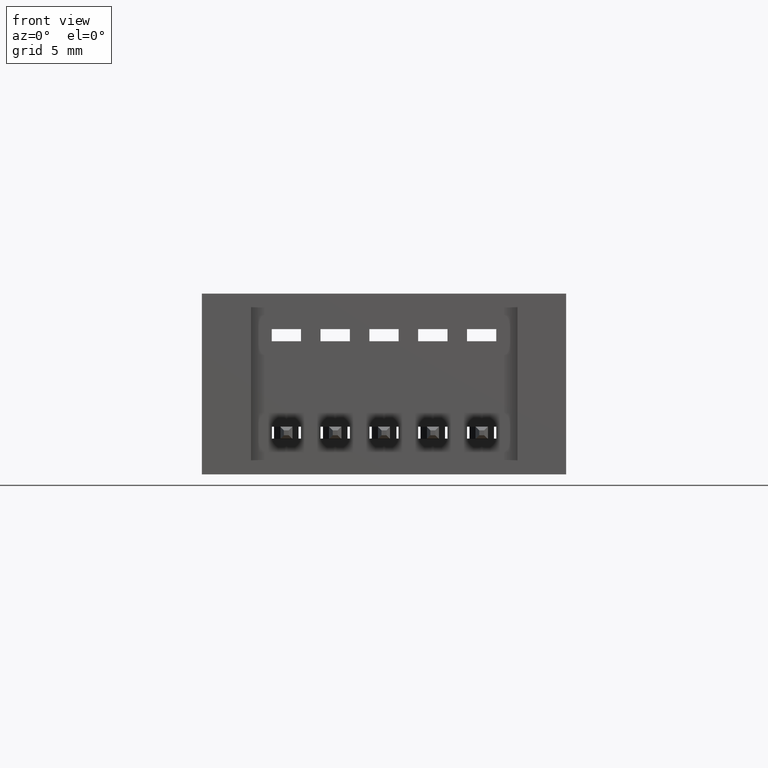
[diagram: clean part render]
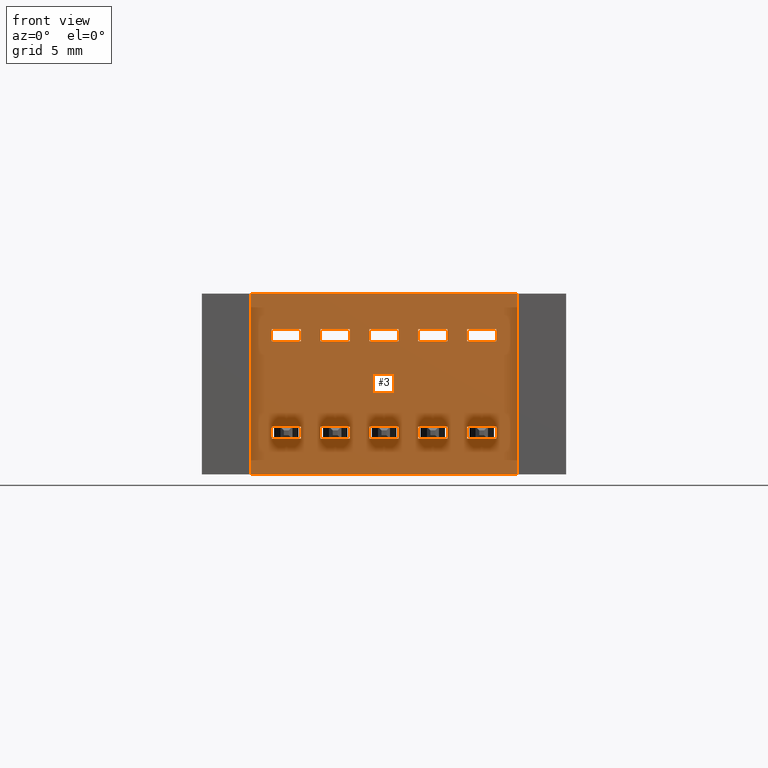
[diagram: same view with one face highlighted and labeled with its STEP entity id]
A machine part, front view. The second image highlights one B-rep face of the part: STEP entity #3.
In plain terms, the highlighted planar face has unit normal (0, 1, 0).
Its self-contained STEP definition (entity closure, byte-faithful):
#2 = CARTESIAN_POINT ( 'NONE',  ( 0.7199999999999998600, 0.04000000000000000100, -0.09750000000000001700 ) ) ;
#3 = ADVANCED_FACE ( 'NONE', ( #7168, #5642, #1019, #6998, #5470, #3957, #2370, #845, #6825, #5285, #3761 ), #747, .F. ) ;
#10 = CARTESIAN_POINT ( 'NONE',  ( 0.6799999999999999400, 0.04000000000000000800, -0.07250000000000000900 ) ) ;
#23 = VECTOR ( 'NONE', #4223, 39.37007874015748100 ) ;
#35 = ORIENTED_EDGE ( 'NONE', *, *, #649, .T. ) ;
#82 = EDGE_LOOP ( 'NONE', ( #2762, #1400, #4502, #3130 ) ) ;
#92 = LINE ( 'NONE', #761, #1808 ) ;
#195 = VERTEX_POINT ( 'NONE', #3414 ) ;
#201 = ORIENTED_EDGE ( 'NONE', *, *, #5214, .T. ) ;
#233 = LINE ( 'NONE', #1312, #6237 ) ;
#291 = EDGE_CURVE ( 'NONE', #7217, #7209, #2928, .T. ) ;
#294 = LINE ( 'NONE', #5564, #4943 ) ;
#343 = VECTOR ( 'NONE', #3204, 39.37007874015748100 ) ;
#374 = CARTESIAN_POINT ( 'NONE',  ( 0.5200000000000000200, 0.04000000000000000800, -0.07249999999999998100 ) ) ;
#384 = ORIENTED_EDGE ( 'NONE', *, *, #291, .F. ) ;
#385 = EDGE_CURVE ( 'NONE', #962, #513, #2563, .T. ) ;
#405 = DIRECTION ( 'NONE',  ( 1.000000000000000000, -0.0000000000000000000, -0.0000000000000000000 ) ) ;
#436 = CARTESIAN_POINT ( 'NONE',  ( 0.8199999999999998400, 0.04000000000000000100, -0.2725000000000000800 ) ) ;
#445 = VECTOR ( 'NONE', #3882, 39.37007874015748100 ) ;
#457 = DIRECTION ( 'NONE',  ( 0.0000000000000000000, 3.414809992080328000E-016, -1.000000000000000000 ) ) ;
#485 = LINE ( 'NONE', #4992, #6478 ) ;
#494 = CARTESIAN_POINT ( 'NONE',  ( 0.4799999999999999800, 0.04000000000000000100, -0.09749999999999998900 ) ) ;
#513 = VERTEX_POINT ( 'NONE', #6024 ) ;
#514 = DIRECTION ( 'NONE',  ( -0.0000000000000000000, -3.414809992080328000E-016, -1.000000000000000000 ) ) ;
#550 = LINE ( 'NONE', #1474, #4653 ) ;
#576 = ORIENTED_EDGE ( 'NONE', *, *, #7409, .F. ) ;
#578 = EDGE_CURVE ( 'NONE', #1137, #7431, #3026, .T. ) ;
#649 = EDGE_CURVE ( 'NONE', #1497, #1867, #6717, .T. ) ;
#663 = EDGE_LOOP ( 'NONE', ( #1577, #201, #5028, #576 ) ) ;
#690 = CARTESIAN_POINT ( 'NONE',  ( 0.6200000000000000000, 0.04000000000000000100, -0.09750000000000000300 ) ) ;
#692 = VERTEX_POINT ( 'NONE', #374 ) ;
#728 = LINE ( 'NONE', #6190, #3829 ) ;
#747 = PLANE ( 'NONE',  #4792 ) ;
#761 = CARTESIAN_POINT ( 'NONE',  ( 0.4200000000000000400, 0.04000000000000000800, -0.2975000000000000400 ) ) ;
#763 = ORIENTED_EDGE ( 'NONE', *, *, #3802, .T. ) ;
#808 = EDGE_LOOP ( 'NONE', ( #4846, #1907, #5023, #4131 ) ) ;
#811 = CARTESIAN_POINT ( 'NONE',  ( 0.6200000000000000000, 0.04000000000000000100, -0.2725000000000000800 ) ) ;
#814 = CARTESIAN_POINT ( 'NONE',  ( 0.5800000000000000700, 0.04000000000000000100, -0.09750000000000000300 ) ) ;
#845 = FACE_BOUND ( 'NONE', #6201, .T. ) ;
#853 = ORIENTED_EDGE ( 'NONE', *, *, #5620, .T. ) ;
#892 = CARTESIAN_POINT ( 'NONE',  ( 0.7799999999999999200, 0.04000000000000000100, -0.2975000000000001000 ) ) ;
#901 = CARTESIAN_POINT ( 'NONE',  ( 0.3770000000000000600, 0.04000000000000000100, -0.3700000000000000000 ) ) ;
#923 = EDGE_CURVE ( 'NONE', #692, #6765, #1642, .T. ) ;
#940 = EDGE_CURVE ( 'NONE', #7088, #2026, #92, .T. ) ;
#941 = EDGE_LOOP ( 'NONE', ( #6474, #5128, #5296, #853 ) ) ;
#944 = ORIENTED_EDGE ( 'NONE', *, *, #2325, .F. ) ;
#950 = VERTEX_POINT ( 'NONE', #1616 ) ;
#953 = ORIENTED_EDGE ( 'NONE', *, *, #4232, .F. ) ;
#962 = VERTEX_POINT ( 'NONE', #6511 ) ;
#1019 = FACE_BOUND ( 'NONE', #663, .T. ) ;
#1038 = VERTEX_POINT ( 'NONE', #4463 ) ;
#1056 = VERTEX_POINT ( 'NONE', #1969 ) ;
#1073 = VERTEX_POINT ( 'NONE', #1597 ) ;
#1097 = LINE ( 'NONE', #5647, #4026 ) ;
#1104 = VECTOR ( 'NONE', #6695, 39.37007874015748100 ) ;
#1107 = EDGE_CURVE ( 'NONE', #1369, #1073, #3653, .T. ) ;
#1117 = ORIENTED_EDGE ( 'NONE', *, *, #385, .T. ) ;
#1122 = VERTEX_POINT ( 'NONE', #1518 ) ;
#1137 = VERTEX_POINT ( 'NONE', #2841 ) ;
#1157 = VECTOR ( 'NONE', #405, 39.37007874015748100 ) ;
#1160 = DIRECTION ( 'NONE',  ( 1.000000000000000000, -0.0000000000000000000, -0.0000000000000000000 ) ) ;
#1191 = EDGE_CURVE ( 'NONE', #3138, #6627, #2910, .T. ) ;
#1206 = ORIENTED_EDGE ( 'NONE', *, *, #3826, .F. ) ;
#1220 = DIRECTION ( 'NONE',  ( 1.000000000000000000, -0.0000000000000000000, -0.0000000000000000000 ) ) ;
#1233 = VERTEX_POINT ( 'NONE', #5099 ) ;
#1237 = CARTESIAN_POINT ( 'NONE',  ( 0.7799999999999999200, 0.04000000000000000100, -0.09750000000000001700 ) ) ;
#1257 = CARTESIAN_POINT ( 'NONE',  ( 0.4799999999999999800, 0.04000000000000000800, -0.07249999999999998100 ) ) ;
#1261 = VECTOR ( 'NONE', #1994, 39.37007874015748100 ) ;
#1275 = CARTESIAN_POINT ( 'NONE',  ( 0.8799999999999998900, 0.04000000000000000800, -0.07250000000000002300 ) ) ;
#1289 = DIRECTION ( 'NONE',  ( 1.000000000000000000, -0.0000000000000000000, -0.0000000000000000000 ) ) ;
#1308 = ORIENTED_EDGE ( 'NONE', *, *, #4941, .F. ) ;
#1312 = CARTESIAN_POINT ( 'NONE',  ( 0.8199999999999998400, 0.04000000000000000100, -0.09750000000000003100 ) ) ;
#1324 = LINE ( 'NONE', #6307, #7281 ) ;
#1330 = VERTEX_POINT ( 'NONE', #6272 ) ;
#1366 = VECTOR ( 'NONE', #5114, 39.37007874015748100 ) ;
#1369 = VERTEX_POINT ( 'NONE', #3824 ) ;
#1386 = EDGE_LOOP ( 'NONE', ( #1308, #2858, #5948, #3050 ) ) ;
#1388 = CARTESIAN_POINT ( 'NONE',  ( 0.6200000000000000000, 0.04000000000000000800, -0.2975000000000001000 ) ) ;
#1391 = DIRECTION ( 'NONE',  ( 0.0000000000000000000, 3.414809992080328000E-016, -1.000000000000000000 ) ) ;
#1395 = ORIENTED_EDGE ( 'NONE', *, *, #2230, .T. ) ;
#1400 = ORIENTED_EDGE ( 'NONE', *, *, #2085, .T. ) ;
#1436 = EDGE_LOOP ( 'NONE', ( #1206, #2756, #1395, #35 ) ) ;
#1448 = CARTESIAN_POINT ( 'NONE',  ( 0.4200000000000000400, 0.04000000000000000800, -0.07249999999999998100 ) ) ;
#1474 = CARTESIAN_POINT ( 'NONE',  ( 0.6200000000000000000, 0.04000000000000000800, -0.2975000000000001000 ) ) ;
#1497 = VERTEX_POINT ( 'NONE', #5975 ) ;
#1512 = DIRECTION ( 'NONE',  ( -0.0000000000000000000, -3.414809992080328000E-016, -1.000000000000000000 ) ) ;
#1518 = CARTESIAN_POINT ( 'NONE',  ( 0.5800000000000000700, 0.04000000000000000800, -0.07249999999999998100 ) ) ;
#1542 = LINE ( 'NONE', #4851, #2717 ) ;
#1577 = ORIENTED_EDGE ( 'NONE', *, *, #923, .F. ) ;
#1585 = CARTESIAN_POINT ( 'NONE',  ( 0.7199999999999998600, 0.04000000000000000800, -0.2975000000000001000 ) ) ;
#1592 = CARTESIAN_POINT ( 'NONE',  ( 0.5200000000000000200, 0.04000000000000000100, -0.2725000000000000200 ) ) ;
#1597 = CARTESIAN_POINT ( 'NONE',  ( 0.8199999999999998400, 0.04000000000000000800, -0.2975000000000001000 ) ) ;
#1616 = CARTESIAN_POINT ( 'NONE',  ( 0.9229999999999999300, 0.04000000000000000100, -0.3700000000000001100 ) ) ;
#1628 = DIRECTION ( 'NONE',  ( 1.000000000000000000, -0.0000000000000000000, -0.0000000000000000000 ) ) ;
#1642 = LINE ( 'NONE', #2358, #4917 ) ;
#1702 = VECTOR ( 'NONE', #2536, 39.37007874015748100 ) ;
#1724 = EDGE_CURVE ( 'NONE', #5955, #950, #1097, .T. ) ;
#1727 = CARTESIAN_POINT ( 'NONE',  ( 0.5800000000000000700, 0.04000000000000000100, -0.2725000000000000200 ) ) ;
#1788 = VECTOR ( 'NONE', #7290, 39.37007874015748100 ) ;
#1801 = LINE ( 'NONE', #2435, #445 ) ;
#1808 = VECTOR ( 'NONE', #5154, 39.37007874015748100 ) ;
#1820 = DIRECTION ( 'NONE',  ( 1.000000000000000000, -0.0000000000000000000, -0.0000000000000000000 ) ) ;
#1842 = EDGE_CURVE ( 'NONE', #7209, #5405, #550, .T. ) ;
#1851 = CARTESIAN_POINT ( 'NONE',  ( 0.3770000000000000600, 0.04000000000000000100, 0.0000000000000000000 ) ) ;
#1853 = LINE ( 'NONE', #6828, #6138 ) ;
#1867 = VERTEX_POINT ( 'NONE', #892 ) ;
#1871 = VERTEX_POINT ( 'NONE', #1257 ) ;
#1881 = CARTESIAN_POINT ( 'NONE',  ( 0.7799999999999999200, 0.04000000000000000100, -0.09750000000000001700 ) ) ;
#1886 = CARTESIAN_POINT ( 'NONE',  ( 0.6799999999999999400, 0.04000000000000000100, -0.2725000000000000800 ) ) ;
#1899 = DIRECTION ( 'NONE',  ( 1.000000000000000000, -0.0000000000000000000, -0.0000000000000000000 ) ) ;
#1907 = ORIENTED_EDGE ( 'NONE', *, *, #7359, .T. ) ;
#1969 = CARTESIAN_POINT ( 'NONE',  ( 0.5800000000000000700, 0.04000000000000000100, -0.2975000000000000400 ) ) ;
#1994 = DIRECTION ( 'NONE',  ( 1.000000000000000000, -0.0000000000000000000, -0.0000000000000000000 ) ) ;
#2026 = VERTEX_POINT ( 'NONE', #3092 ) ;
#2056 = VERTEX_POINT ( 'NONE', #4050 ) ;
#2084 = VECTOR ( 'NONE', #6787, 39.37007874015748100 ) ;
#2085 = EDGE_CURVE ( 'NONE', #4618, #1871, #3379, .T. ) ;
#2104 = ORIENTED_EDGE ( 'NONE', *, *, #7343, .F. ) ;
#2124 = VERTEX_POINT ( 'NONE', #1881 ) ;
#2176 = CARTESIAN_POINT ( 'NONE',  ( 0.4200000000000000400, 0.04000000000000000800, -0.07249999999999998100 ) ) ;
#2188 = EDGE_CURVE ( 'NONE', #950, #7064, #2443, .T. ) ;
#2228 = DIRECTION ( 'NONE',  ( -0.0000000000000000000, -3.414809992080328000E-016, -1.000000000000000000 ) ) ;
#2230 = EDGE_CURVE ( 'NONE', #1137, #1497, #728, .T. ) ;
#2325 = EDGE_CURVE ( 'NONE', #962, #1330, #6346, .T. ) ;
#2358 = CARTESIAN_POINT ( 'NONE',  ( 0.5200000000000000200, 0.04000000000000000100, -0.09750000000000000300 ) ) ;
#2362 = VECTOR ( 'NONE', #6148, 39.37007874015748100 ) ;
#2370 = FACE_BOUND ( 'NONE', #82, .T. ) ;
#2380 = CARTESIAN_POINT ( 'NONE',  ( 0.9229999999999998200, 0.04000000000000000100, -1.895600338963814500E-033 ) ) ;
#2387 = VERTEX_POINT ( 'NONE', #690 ) ;
#2406 = EDGE_CURVE ( 'NONE', #6850, #1233, #1542, .T. ) ;
#2407 = DIRECTION ( 'NONE',  ( 1.000000000000000000, 0.0000000000000000000, -1.250846150945175800E-016 ) ) ;
#2410 = DIRECTION ( 'NONE',  ( 1.000000000000000000, -0.0000000000000000000, -0.0000000000000000000 ) ) ;
#2435 = CARTESIAN_POINT ( 'NONE',  ( 0.8799999999999998900, 0.04000000000000000100, -0.09750000000000003100 ) ) ;
#2443 = LINE ( 'NONE', #5788, #5541 ) ;
#2474 = CARTESIAN_POINT ( 'NONE',  ( 0.5200000000000000200, 0.04000000000000000800, -0.2975000000000000400 ) ) ;
#2495 = DIRECTION ( 'NONE',  ( 0.0000000000000000000, 3.414809992080328000E-016, -1.000000000000000000 ) ) ;
#2513 = CARTESIAN_POINT ( 'NONE',  ( 0.7199999999999998600, 0.04000000000000000800, -0.2975000000000001000 ) ) ;
#2525 = CARTESIAN_POINT ( 'NONE',  ( 0.6200000000000000000, 0.04000000000000000800, -0.07250000000000000900 ) ) ;
#2536 = DIRECTION ( 'NONE',  ( 1.000000000000000000, -0.0000000000000000000, -0.0000000000000000000 ) ) ;
#2542 = CARTESIAN_POINT ( 'NONE',  ( 0.8799999999999998900, 0.04000000000000000100, -0.09750000000000003100 ) ) ;
#2563 = LINE ( 'NONE', #6933, #2362 ) ;
#2596 = CARTESIAN_POINT ( 'NONE',  ( 0.8199999999999998400, 0.04000000000000000100, -0.09750000000000003100 ) ) ;
#2610 = EDGE_CURVE ( 'NONE', #3537, #5160, #2808, .T. ) ;
#2676 = ORIENTED_EDGE ( 'NONE', *, *, #4375, .T. ) ;
#2679 = DIRECTION ( 'NONE',  ( 1.000000000000000000, -0.0000000000000000000, -0.0000000000000000000 ) ) ;
#2717 = VECTOR ( 'NONE', #1391, 39.37007874015748100 ) ;
#2721 = CARTESIAN_POINT ( 'NONE',  ( 0.5200000000000000200, 0.04000000000000000100, -0.09750000000000000300 ) ) ;
#2736 = EDGE_CURVE ( 'NONE', #1122, #1038, #4995, .T. ) ;
#2756 = ORIENTED_EDGE ( 'NONE', *, *, #578, .F. ) ;
#2762 = ORIENTED_EDGE ( 'NONE', *, *, #5691, .F. ) ;
#2798 = CARTESIAN_POINT ( 'NONE',  ( 0.4200000000000000400, 0.04000000000000000100, -0.09749999999999998900 ) ) ;
#2808 = LINE ( 'NONE', #5032, #1261 ) ;
#2809 = DIRECTION ( 'NONE',  ( -0.0000000000000000000, -3.414809992080328000E-016, -1.000000000000000000 ) ) ;
#2811 = DIRECTION ( 'NONE',  ( 0.0000000000000000000, 3.414809992080328000E-016, -1.000000000000000000 ) ) ;
#2841 = CARTESIAN_POINT ( 'NONE',  ( 0.7199999999999998600, 0.04000000000000000100, -0.2725000000000000800 ) ) ;
#2858 = ORIENTED_EDGE ( 'NONE', *, *, #2610, .T. ) ;
#2859 = VECTOR ( 'NONE', #1628, 39.37007874015748100 ) ;
#2910 = LINE ( 'NONE', #5460, #1366 ) ;
#2928 = LINE ( 'NONE', #4474, #23 ) ;
#2973 = DIRECTION ( 'NONE',  ( -0.0000000000000000000, 1.000000000000000000, 0.0000000000000000000 ) ) ;
#3026 = LINE ( 'NONE', #6676, #1104 ) ;
#3050 = ORIENTED_EDGE ( 'NONE', *, *, #1191, .F. ) ;
#3052 = LINE ( 'NONE', #6300, #2859 ) ;
#3076 = DIRECTION ( 'NONE',  ( 1.000000000000000000, -0.0000000000000000000, -0.0000000000000000000 ) ) ;
#3082 = DIRECTION ( 'NONE',  ( 1.000000000000000000, -0.0000000000000000000, -0.0000000000000000000 ) ) ;
#3092 = CARTESIAN_POINT ( 'NONE',  ( 0.4799999999999999800, 0.04000000000000000100, -0.2975000000000000400 ) ) ;
#3130 = ORIENTED_EDGE ( 'NONE', *, *, #3131, .F. ) ;
#3131 = EDGE_CURVE ( 'NONE', #5968, #3350, #6610, .T. ) ;
#3138 = VERTEX_POINT ( 'NONE', #2596 ) ;
#3143 = CARTESIAN_POINT ( 'NONE',  ( 0.5200000000000000200, 0.04000000000000000800, -0.07249999999999998100 ) ) ;
#3148 = EDGE_CURVE ( 'NONE', #5160, #6627, #1801, .T. ) ;
#3192 = VECTOR ( 'NONE', #6181, 39.37007874015748100 ) ;
#3204 = DIRECTION ( 'NONE',  ( -0.0000000000000000000, -3.414809992080328000E-016, -1.000000000000000000 ) ) ;
#3228 = ORIENTED_EDGE ( 'NONE', *, *, #6092, .T. ) ;
#3240 = LINE ( 'NONE', #1727, #5756 ) ;
#3242 = LINE ( 'NONE', #901, #6483 ) ;
#3273 = VECTOR ( 'NONE', #7330, 39.37007874015748100 ) ;
#3332 = DIRECTION ( 'NONE',  ( 1.000000000000000000, -0.0000000000000000000, -0.0000000000000000000 ) ) ;
#3340 = VERTEX_POINT ( 'NONE', #2 ) ;
#3350 = VERTEX_POINT ( 'NONE', #3888 ) ;
#3365 = LINE ( 'NONE', #7345, #1788 ) ;
#3377 = VECTOR ( 'NONE', #3082, 39.37007874015748100 ) ;
#3379 = LINE ( 'NONE', #2176, #3192 ) ;
#3382 = EDGE_LOOP ( 'NONE', ( #953, #7095, #2676, #5753 ) ) ;
#3391 = EDGE_CURVE ( 'NONE', #1871, #3350, #6526, .T. ) ;
#3414 = CARTESIAN_POINT ( 'NONE',  ( 0.4200000000000000400, 0.04000000000000000100, -0.2725000000000000200 ) ) ;
#3513 = ORIENTED_EDGE ( 'NONE', *, *, #5896, .T. ) ;
#3537 = VERTEX_POINT ( 'NONE', #5103 ) ;
#3636 = CARTESIAN_POINT ( 'NONE',  ( 0.6200000000000000000, 0.04000000000000000100, -0.2725000000000000800 ) ) ;
#3639 = VECTOR ( 'NONE', #1899, 39.37007874015748100 ) ;
#3642 = LINE ( 'NONE', #3839, #4993 ) ;
#3644 = VECTOR ( 'NONE', #7176, 39.37007874015748100 ) ;
#3653 = LINE ( 'NONE', #5828, #5005 ) ;
#3677 = VERTEX_POINT ( 'NONE', #4248 ) ;
#3685 = ORIENTED_EDGE ( 'NONE', *, *, #5976, .T. ) ;
#3761 = FACE_BOUND ( 'NONE', #1386, .T. ) ;
#3802 = EDGE_CURVE ( 'NONE', #6387, #3677, #3642, .T. ) ;
#3819 = EDGE_CURVE ( 'NONE', #1330, #1056, #4810, .T. ) ;
#3824 = CARTESIAN_POINT ( 'NONE',  ( 0.8199999999999998400, 0.04000000000000000100, -0.2725000000000000800 ) ) ;
#3826 = EDGE_CURVE ( 'NONE', #7431, #1867, #6517, .T. ) ;
#3829 = VECTOR ( 'NONE', #1820, 39.37007874015748100 ) ;
#3837 = CARTESIAN_POINT ( 'NONE',  ( 0.6799999999999999400, 0.04000000000000000100, -0.2975000000000001000 ) ) ;
#3839 = CARTESIAN_POINT ( 'NONE',  ( 0.6799999999999999400, 0.04000000000000000100, -0.09750000000000000300 ) ) ;
#3866 = ORIENTED_EDGE ( 'NONE', *, *, #3819, .F. ) ;
#3882 = DIRECTION ( 'NONE',  ( -0.0000000000000000000, -3.414809992080328000E-016, -1.000000000000000000 ) ) ;
#3888 = CARTESIAN_POINT ( 'NONE',  ( 0.4799999999999999800, 0.04000000000000000100, -0.09749999999999998900 ) ) ;
#3955 = CARTESIAN_POINT ( 'NONE',  ( 0.8799999999999998900, 0.04000000000000000100, -0.2725000000000000800 ) ) ;
#3957 = FACE_BOUND ( 'NONE', #941, .T. ) ;
#3977 = VECTOR ( 'NONE', #5406, 39.37007874015748100 ) ;
#3978 = CARTESIAN_POINT ( 'NONE',  ( 0.3770000000000000600, 0.04000000000000000100, 0.0000000000000000000 ) ) ;
#4008 = VERTEX_POINT ( 'NONE', #6101 ) ;
#4026 = VECTOR ( 'NONE', #2407, 39.37007874015748100 ) ;
#4050 = CARTESIAN_POINT ( 'NONE',  ( 0.7799999999999999200, 0.04000000000000000800, -0.07250000000000000900 ) ) ;
#4071 = EDGE_CURVE ( 'NONE', #195, #7088, #3365, .T. ) ;
#4131 = ORIENTED_EDGE ( 'NONE', *, *, #6309, .F. ) ;
#4147 = LINE ( 'NONE', #2525, #3977 ) ;
#4223 = DIRECTION ( 'NONE',  ( 0.0000000000000000000, 3.414809992080328000E-016, -1.000000000000000000 ) ) ;
#4232 = EDGE_CURVE ( 'NONE', #1073, #1233, #4981, .T. ) ;
#4248 = CARTESIAN_POINT ( 'NONE',  ( 0.6799999999999999400, 0.04000000000000000100, -0.09750000000000000300 ) ) ;
#4255 = VECTOR ( 'NONE', #2228, 39.37007874015748100 ) ;
#4261 = CARTESIAN_POINT ( 'NONE',  ( 0.4200000000000000400, 0.04000000000000000100, -0.09749999999999998900 ) ) ;
#4275 = EDGE_CURVE ( 'NONE', #7064, #7115, #6333, .T. ) ;
#4325 = LINE ( 'NONE', #5348, #4503 ) ;
#4337 = DIRECTION ( 'NONE',  ( -0.0000000000000000000, -3.414809992080328000E-016, -1.000000000000000000 ) ) ;
#4375 = EDGE_CURVE ( 'NONE', #1369, #6850, #5601, .T. ) ;
#4403 = VECTOR ( 'NONE', #3332, 39.37007874015748100 ) ;
#4463 = CARTESIAN_POINT ( 'NONE',  ( 0.5800000000000000700, 0.04000000000000000100, -0.09750000000000000300 ) ) ;
#4474 = CARTESIAN_POINT ( 'NONE',  ( 0.6200000000000000000, 0.04000000000000000100, -0.2725000000000000800 ) ) ;
#4502 = ORIENTED_EDGE ( 'NONE', *, *, #3391, .T. ) ;
#4503 = VECTOR ( 'NONE', #1289, 39.37007874015748100 ) ;
#4512 = LINE ( 'NONE', #3636, #5856 ) ;
#4578 = DIRECTION ( 'NONE',  ( -0.0000000000000000000, -3.414809992080328000E-016, -1.000000000000000000 ) ) ;
#4591 = ORIENTED_EDGE ( 'NONE', *, *, #4275, .T. ) ;
#4618 = VERTEX_POINT ( 'NONE', #1448 ) ;
#4644 = VECTOR ( 'NONE', #2495, 39.37007874015748100 ) ;
#4653 = VECTOR ( 'NONE', #3076, 39.37007874015748100 ) ;
#4737 = EDGE_CURVE ( 'NONE', #5463, #5405, #6328, .T. ) ;
#4792 = AXIS2_PLACEMENT_3D ( 'NONE', #2380, #2973, #5115 ) ;
#4810 = LINE ( 'NONE', #2474, #6336 ) ;
#4846 = ORIENTED_EDGE ( 'NONE', *, *, #5954, .F. ) ;
#4849 = EDGE_LOOP ( 'NONE', ( #5944, #4591, #3228, #6302 ) ) ;
#4851 = CARTESIAN_POINT ( 'NONE',  ( 0.8799999999999998900, 0.04000000000000000100, -0.2725000000000000800 ) ) ;
#4865 = VECTOR ( 'NONE', #1220, 39.37007874015748100 ) ;
#4907 = CARTESIAN_POINT ( 'NONE',  ( 0.7199999999999998600, 0.04000000000000000800, -0.07250000000000000900 ) ) ;
#4917 = VECTOR ( 'NONE', #4578, 39.37007874015748100 ) ;
#4941 = EDGE_CURVE ( 'NONE', #3537, #3138, #233, .T. ) ;
#4943 = VECTOR ( 'NONE', #2679, 39.37007874015748100 ) ;
#4981 = LINE ( 'NONE', #5091, #3639 ) ;
#4992 = CARTESIAN_POINT ( 'NONE',  ( 0.6200000000000000000, 0.04000000000000000100, -0.09750000000000000300 ) ) ;
#4993 = VECTOR ( 'NONE', #2809, 39.37007874015748100 ) ;
#4995 = LINE ( 'NONE', #814, #3644 ) ;
#5005 = VECTOR ( 'NONE', #5769, 39.37007874015748100 ) ;
#5023 = ORIENTED_EDGE ( 'NONE', *, *, #5282, .T. ) ;
#5028 = ORIENTED_EDGE ( 'NONE', *, *, #2736, .T. ) ;
#5032 = CARTESIAN_POINT ( 'NONE',  ( 0.8199999999999998400, 0.04000000000000000800, -0.07250000000000002300 ) ) ;
#5091 = CARTESIAN_POINT ( 'NONE',  ( 0.8199999999999998400, 0.04000000000000000800, -0.2975000000000001000 ) ) ;
#5099 = CARTESIAN_POINT ( 'NONE',  ( 0.8799999999999998900, 0.04000000000000000100, -0.2975000000000001000 ) ) ;
#5103 = CARTESIAN_POINT ( 'NONE',  ( 0.8199999999999998400, 0.04000000000000000800, -0.07250000000000002300 ) ) ;
#5114 = DIRECTION ( 'NONE',  ( 1.000000000000000000, -0.0000000000000000000, -0.0000000000000000000 ) ) ;
#5115 = DIRECTION ( 'NONE',  ( 0.0000000000000000000, -0.0000000000000000000, 1.000000000000000000 ) ) ;
#5128 = ORIENTED_EDGE ( 'NONE', *, *, #4071, .F. ) ;
#5154 = DIRECTION ( 'NONE',  ( 1.000000000000000000, -0.0000000000000000000, -0.0000000000000000000 ) ) ;
#5160 = VERTEX_POINT ( 'NONE', #1275 ) ;
#5195 = EDGE_LOOP ( 'NONE', ( #2104, #3685, #763, #6927 ) ) ;
#5214 = EDGE_CURVE ( 'NONE', #692, #1122, #6323, .T. ) ;
#5217 = DIRECTION ( 'NONE',  ( 0.0000000000000000000, 3.414809992080328000E-016, -1.000000000000000000 ) ) ;
#5282 = EDGE_CURVE ( 'NONE', #2056, #2124, #7287, .T. ) ;
#5285 = FACE_BOUND ( 'NONE', #3382, .T. ) ;
#5296 = ORIENTED_EDGE ( 'NONE', *, *, #5822, .T. ) ;
#5348 = CARTESIAN_POINT ( 'NONE',  ( 0.6200000000000000000, 0.04000000000000000100, -0.09750000000000000300 ) ) ;
#5383 = CARTESIAN_POINT ( 'NONE',  ( 0.7199999999999998600, 0.04000000000000000100, -0.09750000000000001700 ) ) ;
#5405 = VERTEX_POINT ( 'NONE', #3837 ) ;
#5406 = DIRECTION ( 'NONE',  ( 1.000000000000000000, -0.0000000000000000000, -0.0000000000000000000 ) ) ;
#5460 = CARTESIAN_POINT ( 'NONE',  ( 0.8199999999999998400, 0.04000000000000000100, -0.09750000000000003100 ) ) ;
#5463 = VERTEX_POINT ( 'NONE', #6129 ) ;
#5470 = FACE_OUTER_BOUND ( 'NONE', #4849, .T. ) ;
#5541 = VECTOR ( 'NONE', #5781, 39.37007874015748100 ) ;
#5564 = CARTESIAN_POINT ( 'NONE',  ( 0.7199999999999998600, 0.04000000000000000800, -0.07250000000000000900 ) ) ;
#5601 = LINE ( 'NONE', #436, #1157 ) ;
#5620 = EDGE_CURVE ( 'NONE', #4008, #2026, #1853, .T. ) ;
#5642 = FACE_BOUND ( 'NONE', #1436, .T. ) ;
#5647 = CARTESIAN_POINT ( 'NONE',  ( 0.3770000000000000600, 0.04000000000000000100, -0.3700000000000000000 ) ) ;
#5669 = VECTOR ( 'NONE', #6543, 39.37007874015748100 ) ;
#5691 = EDGE_CURVE ( 'NONE', #4618, #5968, #1324, .T. ) ;
#5753 = ORIENTED_EDGE ( 'NONE', *, *, #2406, .T. ) ;
#5756 = VECTOR ( 'NONE', #5217, 39.37007874015748100 ) ;
#5769 = DIRECTION ( 'NONE',  ( 0.0000000000000000000, 3.414809992080328000E-016, -1.000000000000000000 ) ) ;
#5781 = DIRECTION ( 'NONE',  ( 0.0000000000000000000, 0.0000000000000000000, 1.000000000000000000 ) ) ;
#5788 = CARTESIAN_POINT ( 'NONE',  ( 0.9229999999999999300, 0.04000000000000000100, -0.3700000000000001100 ) ) ;
#5822 = EDGE_CURVE ( 'NONE', #195, #4008, #6397, .T. ) ;
#5828 = CARTESIAN_POINT ( 'NONE',  ( 0.8199999999999998400, 0.04000000000000000100, -0.2725000000000000800 ) ) ;
#5856 = VECTOR ( 'NONE', #6493, 39.37007874015748100 ) ;
#5896 = EDGE_CURVE ( 'NONE', #7217, #5463, #4512, .T. ) ;
#5929 = CARTESIAN_POINT ( 'NONE',  ( 0.7799999999999999200, 0.04000000000000000100, -0.2725000000000000800 ) ) ;
#5944 = ORIENTED_EDGE ( 'NONE', *, *, #2188, .T. ) ;
#5948 = ORIENTED_EDGE ( 'NONE', *, *, #3148, .T. ) ;
#5954 = EDGE_CURVE ( 'NONE', #6031, #3340, #7194, .T. ) ;
#5955 = VERTEX_POINT ( 'NONE', #5974 ) ;
#5968 = VERTEX_POINT ( 'NONE', #4261 ) ;
#5974 = CARTESIAN_POINT ( 'NONE',  ( 0.3770000000000000600, 0.04000000000000000100, -0.3700000000000000000 ) ) ;
#5975 = CARTESIAN_POINT ( 'NONE',  ( 0.7799999999999999200, 0.04000000000000000100, -0.2725000000000000800 ) ) ;
#5976 = EDGE_CURVE ( 'NONE', #6321, #6387, #4147, .T. ) ;
#6024 = CARTESIAN_POINT ( 'NONE',  ( 0.5800000000000000700, 0.04000000000000000100, -0.2725000000000000200 ) ) ;
#6031 = VERTEX_POINT ( 'NONE', #4907 ) ;
#6092 = EDGE_CURVE ( 'NONE', #7115, #5955, #3242, .T. ) ;
#6101 = CARTESIAN_POINT ( 'NONE',  ( 0.4799999999999999800, 0.04000000000000000100, -0.2725000000000000200 ) ) ;
#6119 = LINE ( 'NONE', #2721, #4403 ) ;
#6129 = CARTESIAN_POINT ( 'NONE',  ( 0.6799999999999999400, 0.04000000000000000100, -0.2725000000000000800 ) ) ;
#6138 = VECTOR ( 'NONE', #457, 39.37007874015748100 ) ;
#6141 = VECTOR ( 'NONE', #1160, 39.37007874015748100 ) ;
#6148 = DIRECTION ( 'NONE',  ( 1.000000000000000000, -0.0000000000000000000, -0.0000000000000000000 ) ) ;
#6150 = VECTOR ( 'NONE', #2811, 39.37007874015748100 ) ;
#6181 = DIRECTION ( 'NONE',  ( 1.000000000000000000, -0.0000000000000000000, -0.0000000000000000000 ) ) ;
#6190 = CARTESIAN_POINT ( 'NONE',  ( 0.7199999999999998600, 0.04000000000000000100, -0.2725000000000000800 ) ) ;
#6201 = EDGE_LOOP ( 'NONE', ( #6214, #384, #3513, #6562 ) ) ;
#6214 = ORIENTED_EDGE ( 'NONE', *, *, #1842, .F. ) ;
#6237 = VECTOR ( 'NONE', #4337, 39.37007874015748100 ) ;
#6272 = CARTESIAN_POINT ( 'NONE',  ( 0.5200000000000000200, 0.04000000000000000800, -0.2975000000000000400 ) ) ;
#6300 = CARTESIAN_POINT ( 'NONE',  ( 0.7199999999999998600, 0.04000000000000000100, -0.09750000000000001700 ) ) ;
#6302 = ORIENTED_EDGE ( 'NONE', *, *, #1724, .T. ) ;
#6307 = CARTESIAN_POINT ( 'NONE',  ( 0.4200000000000000400, 0.04000000000000000100, -0.09749999999999998900 ) ) ;
#6309 = EDGE_CURVE ( 'NONE', #3340, #2124, #3052, .T. ) ;
#6321 = VERTEX_POINT ( 'NONE', #7425 ) ;
#6323 = LINE ( 'NONE', #3143, #6141 ) ;
#6328 = LINE ( 'NONE', #1886, #6150 ) ;
#6333 = LINE ( 'NONE', #3978, #3273 ) ;
#6336 = VECTOR ( 'NONE', #2410, 39.37007874015748100 ) ;
#6346 = LINE ( 'NONE', #1592, #4644 ) ;
#6387 = VERTEX_POINT ( 'NONE', #10 ) ;
#6397 = LINE ( 'NONE', #6421, #4865 ) ;
#6421 = CARTESIAN_POINT ( 'NONE',  ( 0.4200000000000000400, 0.04000000000000000100, -0.2725000000000000200 ) ) ;
#6474 = ORIENTED_EDGE ( 'NONE', *, *, #940, .F. ) ;
#6478 = VECTOR ( 'NONE', #1512, 39.37007874015748100 ) ;
#6483 = VECTOR ( 'NONE', #6689, 39.37007874015748100 ) ;
#6493 = DIRECTION ( 'NONE',  ( 1.000000000000000000, -0.0000000000000000000, -0.0000000000000000000 ) ) ;
#6511 = CARTESIAN_POINT ( 'NONE',  ( 0.5200000000000000200, 0.04000000000000000100, -0.2725000000000000200 ) ) ;
#6517 = LINE ( 'NONE', #2513, #1702 ) ;
#6526 = LINE ( 'NONE', #494, #343 ) ;
#6542 = EDGE_CURVE ( 'NONE', #2387, #3677, #4325, .T. ) ;
#6543 = DIRECTION ( 'NONE',  ( -0.0000000000000000000, -3.414809992080328000E-016, -1.000000000000000000 ) ) ;
#6562 = ORIENTED_EDGE ( 'NONE', *, *, #4737, .T. ) ;
#6610 = LINE ( 'NONE', #2798, #3377 ) ;
#6627 = VERTEX_POINT ( 'NONE', #2542 ) ;
#6676 = CARTESIAN_POINT ( 'NONE',  ( 0.7199999999999998600, 0.04000000000000000100, -0.2725000000000000800 ) ) ;
#6689 = DIRECTION ( 'NONE',  ( -0.0000000000000000000, -0.0000000000000000000, -1.000000000000000000 ) ) ;
#6695 = DIRECTION ( 'NONE',  ( 0.0000000000000000000, 3.414809992080328000E-016, -1.000000000000000000 ) ) ;
#6706 = CARTESIAN_POINT ( 'NONE',  ( 0.5200000000000000200, 0.04000000000000000100, -0.09750000000000000300 ) ) ;
#6717 = LINE ( 'NONE', #5929, #2084 ) ;
#6765 = VERTEX_POINT ( 'NONE', #6706 ) ;
#6787 = DIRECTION ( 'NONE',  ( 0.0000000000000000000, 3.414809992080328000E-016, -1.000000000000000000 ) ) ;
#6825 = FACE_BOUND ( 'NONE', #5195, .T. ) ;
#6828 = CARTESIAN_POINT ( 'NONE',  ( 0.4799999999999999800, 0.04000000000000000100, -0.2725000000000000200 ) ) ;
#6850 = VERTEX_POINT ( 'NONE', #3955 ) ;
#6927 = ORIENTED_EDGE ( 'NONE', *, *, #6542, .F. ) ;
#6933 = CARTESIAN_POINT ( 'NONE',  ( 0.5200000000000000200, 0.04000000000000000100, -0.2725000000000000200 ) ) ;
#6998 = FACE_BOUND ( 'NONE', #7306, .T. ) ;
#7001 = EDGE_CURVE ( 'NONE', #513, #1056, #3240, .T. ) ;
#7028 = CARTESIAN_POINT ( 'NONE',  ( 0.9229999999999999300, 0.04000000000000000100, -1.895600338963814900E-033 ) ) ;
#7050 = CARTESIAN_POINT ( 'NONE',  ( 0.4200000000000000400, 0.04000000000000000800, -0.2975000000000000400 ) ) ;
#7064 = VERTEX_POINT ( 'NONE', #7028 ) ;
#7088 = VERTEX_POINT ( 'NONE', #7050 ) ;
#7095 = ORIENTED_EDGE ( 'NONE', *, *, #1107, .F. ) ;
#7115 = VERTEX_POINT ( 'NONE', #1851 ) ;
#7168 = FACE_BOUND ( 'NONE', #808, .T. ) ;
#7176 = DIRECTION ( 'NONE',  ( -0.0000000000000000000, -3.414809992080328000E-016, -1.000000000000000000 ) ) ;
#7194 = LINE ( 'NONE', #5383, #5669 ) ;
#7209 = VERTEX_POINT ( 'NONE', #1388 ) ;
#7217 = VERTEX_POINT ( 'NONE', #811 ) ;
#7266 = ORIENTED_EDGE ( 'NONE', *, *, #7001, .T. ) ;
#7281 = VECTOR ( 'NONE', #514, 39.37007874015748100 ) ;
#7287 = LINE ( 'NONE', #1237, #4255 ) ;
#7290 = DIRECTION ( 'NONE',  ( 0.0000000000000000000, 3.414809992080328000E-016, -1.000000000000000000 ) ) ;
#7306 = EDGE_LOOP ( 'NONE', ( #3866, #944, #1117, #7266 ) ) ;
#7330 = DIRECTION ( 'NONE',  ( -1.000000000000000000, -0.0000000000000000000, 3.471795492607720400E-033 ) ) ;
#7343 = EDGE_CURVE ( 'NONE', #6321, #2387, #485, .T. ) ;
#7345 = CARTESIAN_POINT ( 'NONE',  ( 0.4200000000000000400, 0.04000000000000000100, -0.2725000000000000200 ) ) ;
#7359 = EDGE_CURVE ( 'NONE', #6031, #2056, #294, .T. ) ;
#7409 = EDGE_CURVE ( 'NONE', #6765, #1038, #6119, .T. ) ;
#7425 = CARTESIAN_POINT ( 'NONE',  ( 0.6200000000000000000, 0.04000000000000000800, -0.07250000000000000900 ) ) ;
#7431 = VERTEX_POINT ( 'NONE', #1585 ) ;